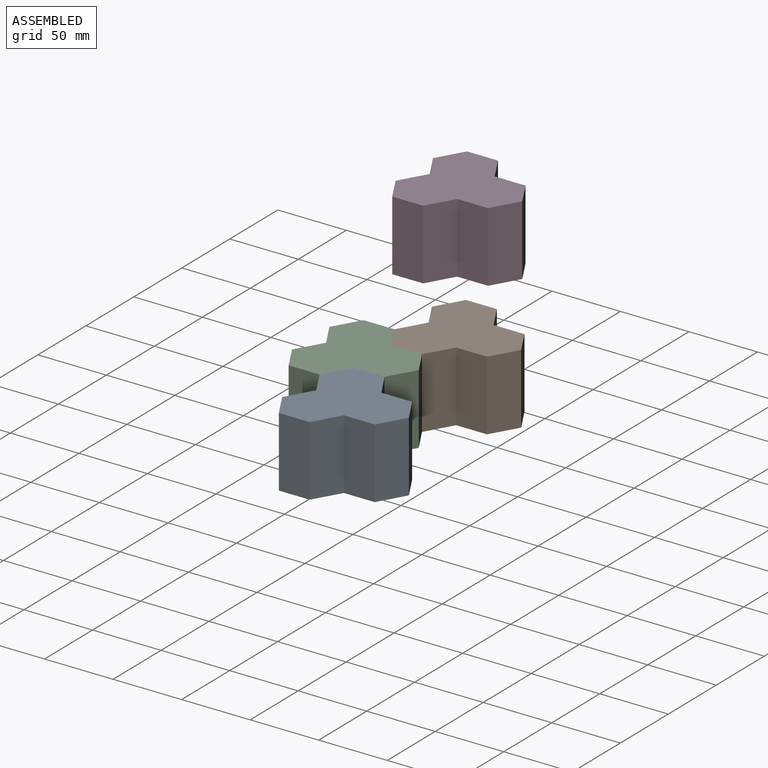
[diagram: assembled view]
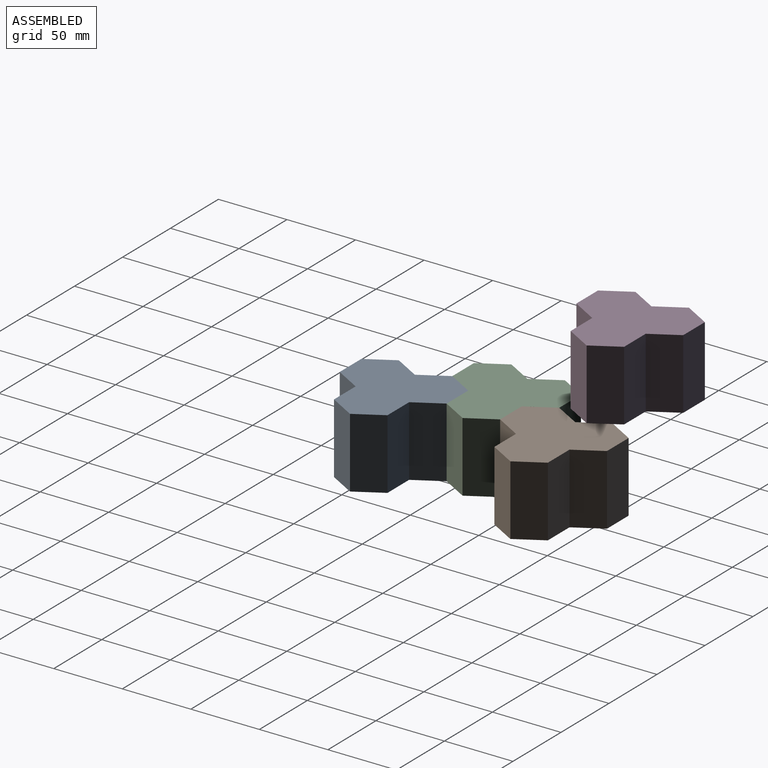
[diagram: assembled view, second angle]
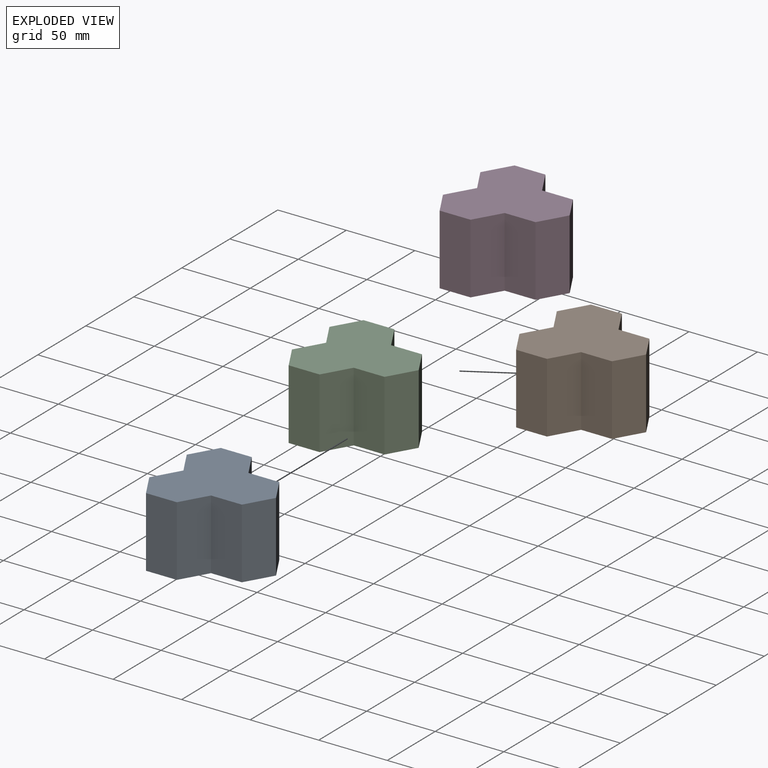
[diagram: exploded view]
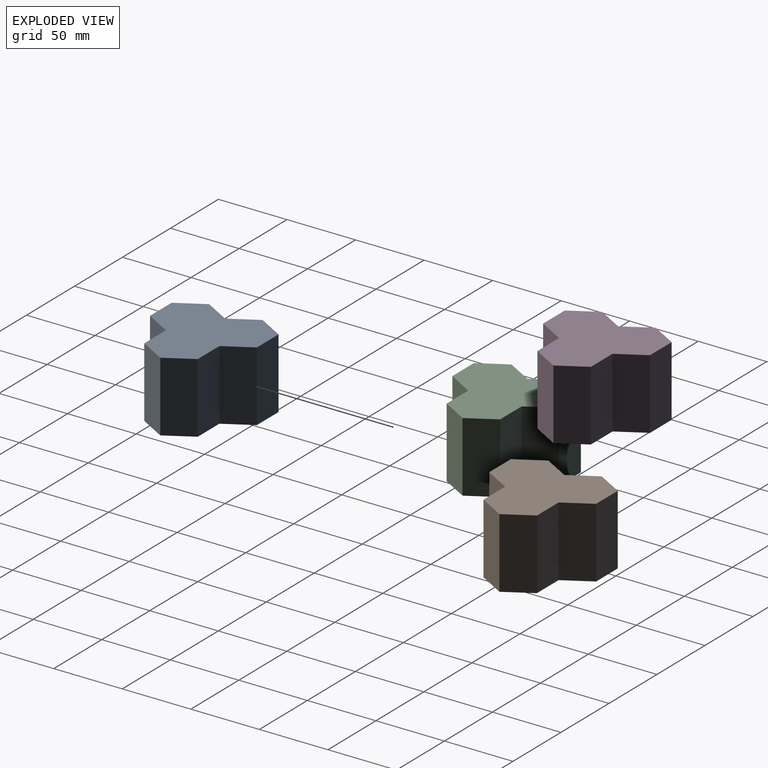
[diagram: exploded view, second angle]
ASSEMBLY  parts=4 mates=2
PART A: 35 faces, bbox 78.8x78x51.2 mm
  f0: plane 50x17.5mm, normal (-0.87,0.5,0), area 1010.4mm2, adj f1,f29,f30,f31
  f1: plane 50x20.21mm, normal (0,1,0), area 1010.4mm2, adj f0,f2,f30,f31
  f2: plane 50x17.5mm, normal (0.87,0.5,0), area 1010.4mm2, adj f1,f3,f30,f31
  f3: plane 50x17.5mm, normal (0.87,-0.5,0), area 1010.4mm2, adj f2,f4,f30,f31
  f4: plane 50x20.21mm, normal (0,-1,0), area 1010.4mm2, adj f3,f29,f30,f31
  f5: plane 50x17.5mm, normal (-0.87,0.5,0), area 1010.4mm2, adj f6,f26,f30,f32
  f6: plane 50x20.21mm, normal (0,1,0), area 1010.4mm2, adj f5,f7,f30,f32
  f7: plane 50x17.5mm, normal (0.87,0.5,0), area 1010.4mm2, adj f6,f8,f30,f32
  f8: plane 50x17.5mm, normal (0.87,-0.5,0), area 1010.4mm2, adj f7,f9,f30,f32
  f9: plane 50x20.21mm, normal (0,-1,0), area 1010.4mm2, adj f8,f26,f30,f32
  f10: plane 50x17.5mm, normal (-0.87,0.5,0), area 1010.4mm2, adj f11,f27,f30,f33
  f11: plane 50x20.21mm, normal (0,1,0), area 1010.4mm2, adj f10,f12,f30,f33
  f12: plane 50x17.5mm, normal (0.87,0.5,0), area 1010.4mm2, adj f11,f13,f30,f33
  f13: plane 50x17.5mm, normal (0.87,-0.5,0), area 1010.4mm2, adj f12,f14,f30,f33
  f14: plane 50x20.21mm, normal (0,-1,0), area 1010.4mm2, adj f13,f27,f30,f33
  f15: plane 51.2x22.52mm, normal (0,-1,0), area 1152.9mm2, adj f16,f28,f30,f34
  f16: plane 51.2x19.5mm, normal (0.87,-0.5,0), area 1152.9mm2, adj f15,f17,f30,f34
  f17: plane 51.2x22.52mm, normal (0,-1,0), area 1152.9mm2, adj f16,f18,f30,f34
  f18: plane 51.2x19.5mm, normal (0.87,-0.5,0), area 1152.9mm2, adj f17,f19,f30,f34
  f19: plane 51.2x19.5mm, normal (0.87,0.5,0), area 1152.9mm2, adj f18,f20,f30,f34
  f20: plane 51.2x22.52mm, normal (0,1,0), area 1152.9mm2, adj f19,f21,f30,f34
  f21: plane 51.2x19.5mm, normal (0.87,0.5,0), area 1152.9mm2, adj f20,f22,f30,f34
  f22: plane 51.2x22.52mm, normal (0,1,0), area 1152.9mm2, adj f21,f23,f30,f34
  f23: plane 51.2x19.5mm, normal (-0.87,0.5,0), area 1152.9mm2, adj f22,f24,f30,f34
  f24: plane 51.2x19.5mm, normal (-0.87,-0.5,0), area 1152.9mm2, adj f23,f25,f30,f34
  f25: plane 51.2x19.5mm, normal (-0.87,0.5,0), area 1152.9mm2, adj f24,f28,f30,f34
  f26: plane 50x17.5mm, normal (-0.87,-0.5,0), area 1010.4mm2, adj f5,f9,f30,f32
  f27: plane 50x17.5mm, normal (-0.87,-0.5,0), area 1010.4mm2, adj f10,f14,f30,f33
  f28: plane 51.2x19.5mm, normal (-0.87,-0.5,0), area 1152.9mm2, adj f15,f25,f30,f34
  f29: plane 50x17.5mm, normal (-0.87,-0.5,0), area 1010.4mm2, adj f0,f4,f30,f31
  f30: plane 78.81x78mm, normal (0,0,-1), area 769mm2, adj f0,f1,f2,f3,f4,f5,f6,f7
  f31: plane 40.41x35mm, normal (0,0,-1), area 1060.9mm2, adj f0,f1,f2,f3,f4,f29
  f32: plane 40.41x35mm, normal (0,0,-1), area 1060.9mm2, adj f5,f6,f7,f8,f9,f26
  f33: plane 40.41x35mm, normal (0,0,-1), area 1060.9mm2, adj f10,f11,f12,f13,f14,f27
  f34: plane 78.81x78mm, normal (0,0,1), area 3951.7mm2, adj f15,f16,f17,f18,f19,f20,f21,f22
PART B: same geometry as A
PART C: same geometry as A
PART D: same geometry as A
PLACE A t=(-90.12,-39.46,-32.85)mm
PLACE B t=(-90.12,77.54,-32.85)mm
PLACE C t=(-123.89,19.04,-32.85)mm
PLACE D t=(-115.71,115.23,43.87)mm
MATE fastened C.f17 <-> A.f22  axis (0,-1,0) through (294.71,95.74,-7.25)mm
MATE fastened C.f21 <-> B.f28  axis (0.87,0.5,0) through (277.82,144.49,-7.25)mm
